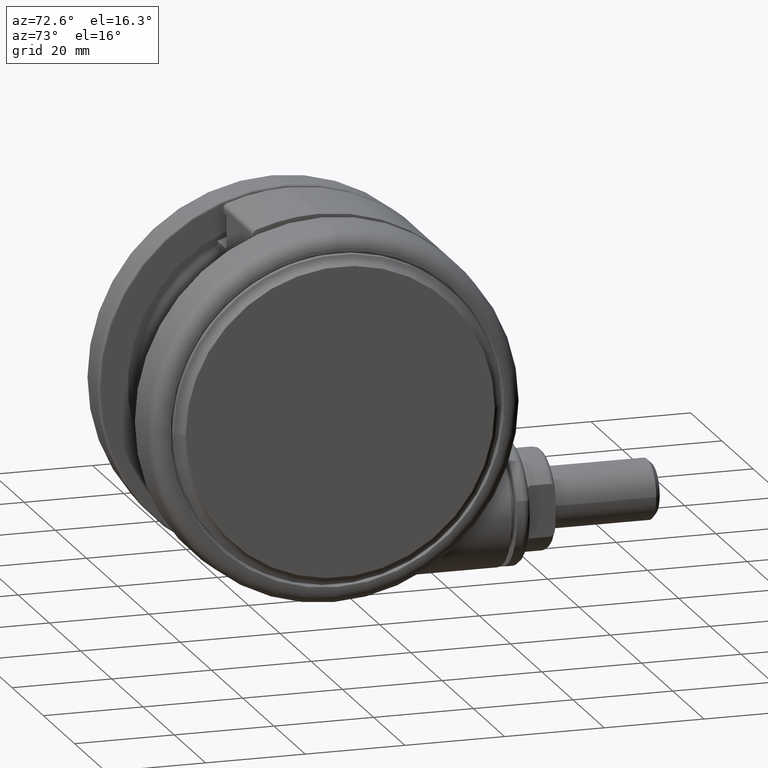
[diagram: clean part render]
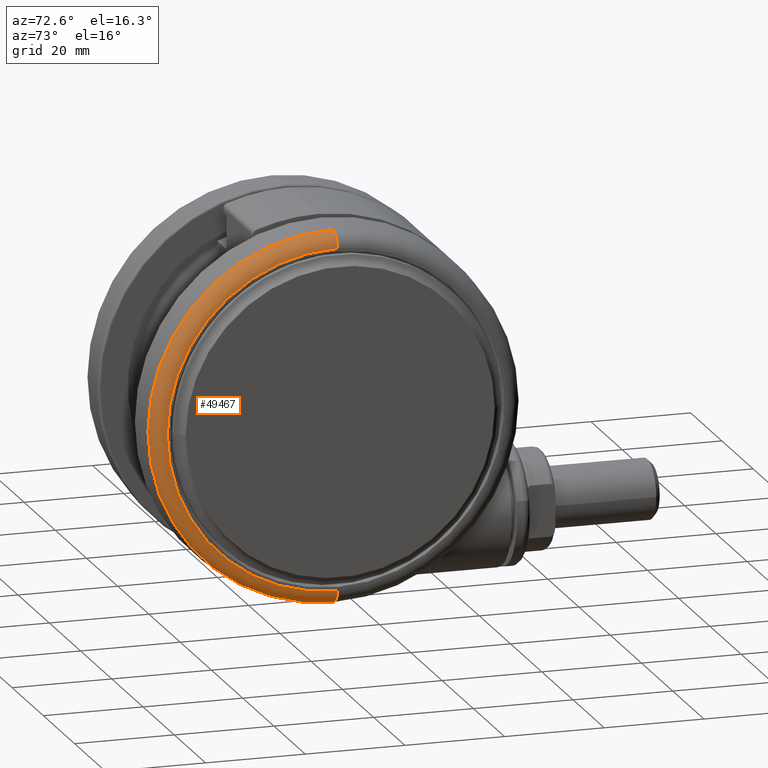
[diagram: same view with one face highlighted and labeled with its STEP entity id]
A machine part, auxiliary view. The second image highlights one B-rep face of the part: STEP entity #49467.
In plain terms, the highlighted toroidal blend (fillet) surface has major radius 34.1304 mm and minor (blend) radius 3 mm.
Its self-contained STEP definition (entity closure, byte-faithful):
#2062 = AXIS2_PLACEMENT_3D ( 'NONE', #17345, #48633, #21871 ) ;
#2761 = DIRECTION ( 'NONE',  ( -1.000000000000000000, -3.152693242729475100E-015, 0.0000000000000000000 ) ) ;
#4386 = CARTESIAN_POINT ( 'NONE',  ( 0.0000000000000000000, -1.387778780781445700E-014, -4.800000000000098400 ) ) ;
#7925 = CARTESIAN_POINT ( 'NONE',  ( 1.123252400555720600E-013, -34.13039991264669500, -1.800000000000110600 ) ) ;
#11354 = DIRECTION ( 'NONE',  ( 0.0000000000000000000, 0.0000000000000000000, 1.000000000000000000 ) ) ;
#12249 = CARTESIAN_POINT ( 'NONE',  ( -1.215944579745338400E-013, 37.12628851691037800, -4.642992131271287600 ) ) ;
#15126 = CIRCLE ( 'NONE', #53852, 2.999999999999988900 ) ;
#15548 = ORIENTED_EDGE ( 'NONE', *, *, #49778, .F. ) ;
#17271 = FACE_OUTER_BOUND ( 'NONE', #46823, .T. ) ;
#17345 = CARTESIAN_POINT ( 'NONE',  ( -1.117824496769200400E-013, 34.13039991264666600, -4.800000000000098400 ) ) ;
#19011 = VERTEX_POINT ( 'NONE', #58032 ) ;
#20634 = ORIENTED_EDGE ( 'NONE', *, *, #43515, .T. ) ;
#21500 = TOROIDAL_SURFACE ( 'NONE', #54958, 34.13039991264668100, 2.999999999999988000 ) ;
#21871 = DIRECTION ( 'NONE',  ( -3.275157922644208200E-015, 1.000000000000000000, 0.0000000000000000000 ) ) ;
#22195 = DIRECTION ( 'NONE',  ( 0.0000000000000000000, 0.0000000000000000000, 1.000000000000000000 ) ) ;
#22394 = EDGE_CURVE ( 'NONE', #35850, #19011, #38221, .T. ) ;
#22999 = EDGE_CURVE ( 'NONE', #35869, #19011, #36169, .T. ) ;
#27420 = AXIS2_PLACEMENT_3D ( 'NONE', #48954, #22195, #53510 ) ;
#29565 = CARTESIAN_POINT ( 'NONE',  ( 1.076026811762558600E-013, -34.13039991264669500, -4.800000000000098400 ) ) ;
#34047 = DIRECTION ( 'NONE',  ( 3.152693242729476600E-015, -1.000000000000000000, 0.0000000000000000000 ) ) ;
#35454 = AXIS2_PLACEMENT_3D ( 'NONE', #38185, #11354, #42691 ) ;
#35697 = DIRECTION ( 'NONE',  ( -3.275157922644210200E-015, 1.000000000000000000, 0.0000000000000000000 ) ) ;
#35850 = VERTEX_POINT ( 'NONE', #7925 ) ;
#35869 = VERTEX_POINT ( 'NONE', #12249 ) ;
#36169 = CIRCLE ( 'NONE', #2062, 2.999999999999988900 ) ;
#38185 = CARTESIAN_POINT ( 'NONE',  ( 0.0000000000000000000, -1.387778780781445700E-014, -1.800000000000110600 ) ) ;
#38221 = CIRCLE ( 'NONE', #35454, 34.13039991264668100 ) ;
#40120 = ORIENTED_EDGE ( 'NONE', *, *, #22999, .T. ) ;
#42645 = VERTEX_POINT ( 'NONE', #48297 ) ;
#42691 = DIRECTION ( 'NONE',  ( -3.275157922644210200E-015, 1.000000000000000000, 0.0000000000000000000 ) ) ;
#43515 = EDGE_CURVE ( 'NONE', #42645, #35869, #47584, .T. ) ;
#44514 = DIRECTION ( 'NONE',  ( 0.0000000000000000000, 0.0000000000000000000, 1.000000000000000000 ) ) ;
#46823 = EDGE_LOOP ( 'NONE', ( #15548, #20634, #40120, #50601 ) ) ;
#47584 = CIRCLE ( 'NONE', #27420, 37.12628851691039200 ) ;
#48297 = CARTESIAN_POINT ( 'NONE',  ( 1.170477989348882900E-013, -37.12628851691040700, -4.642992131271287600 ) ) ;
#48633 = DIRECTION ( 'NONE',  ( 1.000000000000000000, 3.275157922644210200E-015, -0.0000000000000000000 ) ) ;
#48954 = CARTESIAN_POINT ( 'NONE',  ( 0.0000000000000000000, -1.387778780781445700E-014, -4.642992131271287600 ) ) ;
#49467 = ADVANCED_FACE ( 'NONE', ( #17271 ), #21500, .T. ) ;
#49778 = EDGE_CURVE ( 'NONE', #42645, #35850, #15126, .T. ) ;
#50601 = ORIENTED_EDGE ( 'NONE', *, *, #22394, .F. ) ;
#53510 = DIRECTION ( 'NONE',  ( -3.275157922644210200E-015, 1.000000000000000000, 0.0000000000000000000 ) ) ;
#53852 = AXIS2_PLACEMENT_3D ( 'NONE', #29565, #2761, #34047 ) ;
#54958 = AXIS2_PLACEMENT_3D ( 'NONE', #4386, #44514, #35697 ) ;
#58032 = CARTESIAN_POINT ( 'NONE',  ( -1.117824496769200400E-013, 34.13039991264666600, -1.800000000000110600 ) ) ;